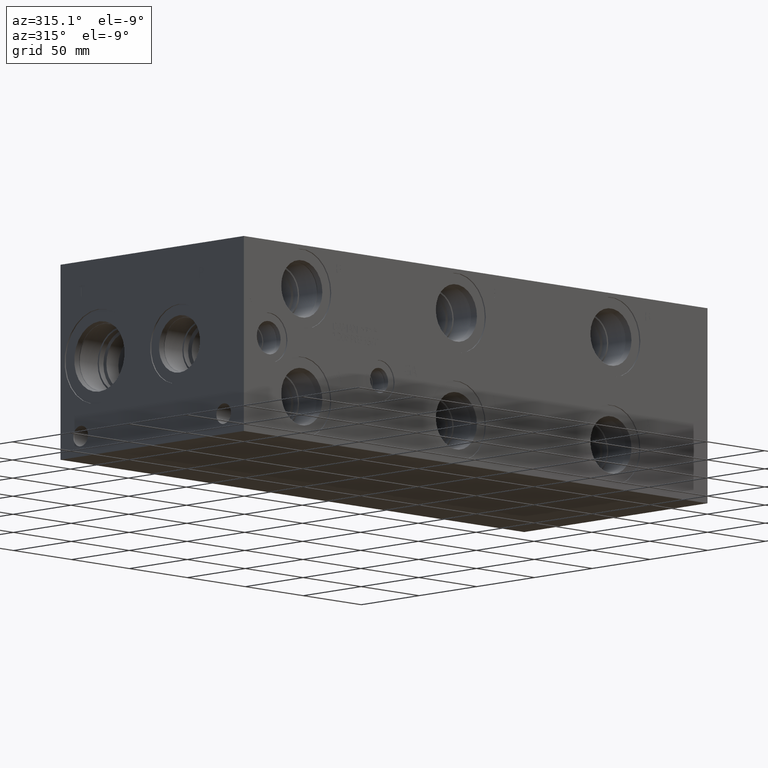
[diagram: clean part render]
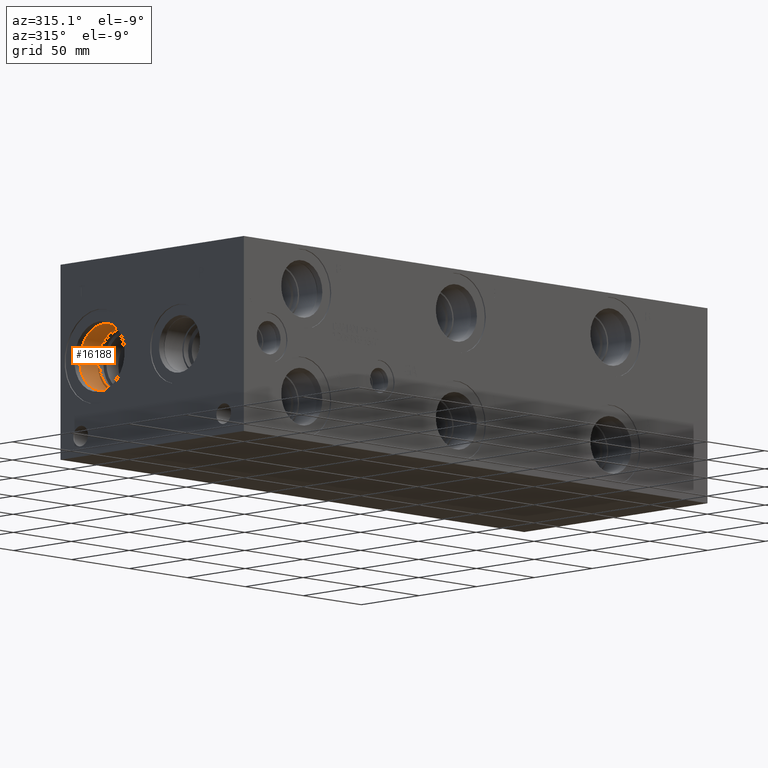
[diagram: same view with one face highlighted and labeled with its STEP entity id]
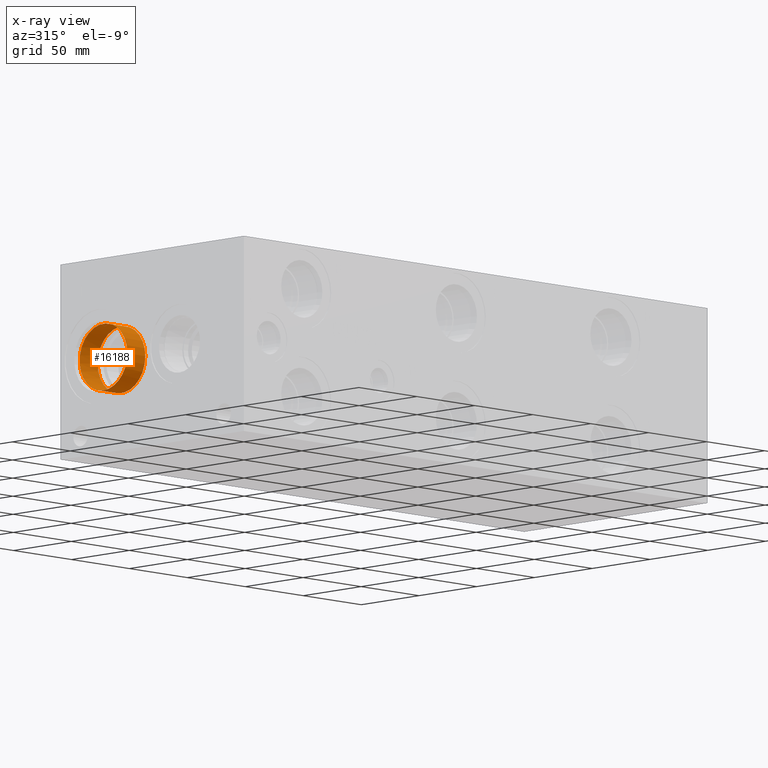
[diagram: x-ray of the same camera — body ghosted, the highlighted face saturated]
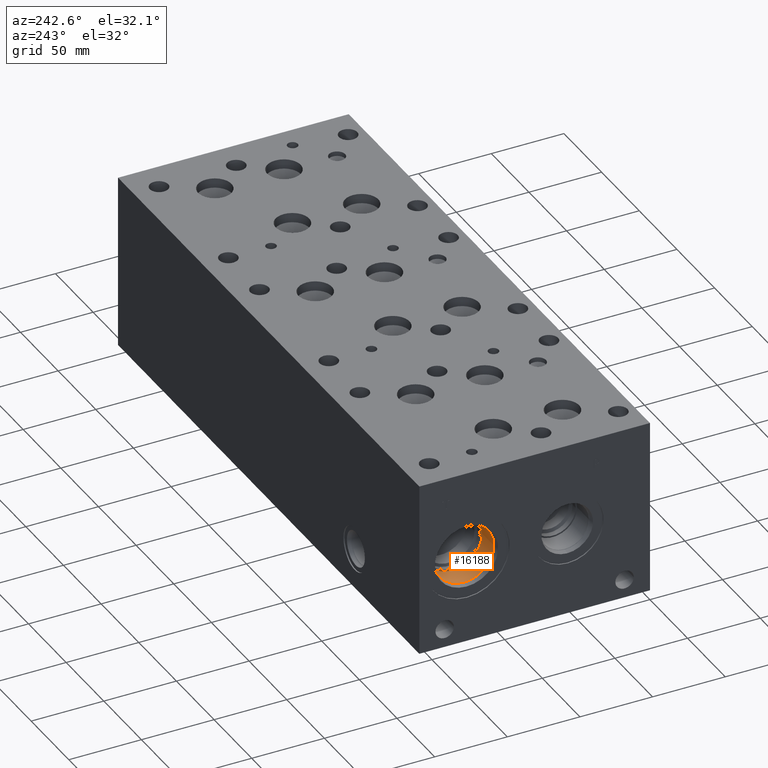
[diagram: same view with one face highlighted and labeled with its STEP entity id]
A machine part, auxiliary view. The second image highlights one B-rep face of the part: STEP entity #16188.
The next image is the same camera in x-ray: the body ghosted, the highlighted face saturated — about 0% of this face is hidden behind the body in this view.
A second angle (auxiliary view) of the same face is appended — the face is thin or edge-on in the first view.
In plain terms, the highlighted cylindrical surface (bore or boss wall) has radius 20.64 mm, axis along (-1, 0, 0).
Its self-contained STEP definition (entity closure, byte-faithful):
#144=CYLINDRICAL_SURFACE('',#16971,20.64);
#366=CIRCLE('',#16968,20.64);
#367=CIRCLE('',#16969,20.64);
#369=CIRCLE('',#16972,20.64);
#370=CIRCLE('',#16973,20.64);
#2143=FACE_OUTER_BOUND('',#3084,.T.);
#3084=EDGE_LOOP('',(#13362,#13363,#13364,#13365,#13366,#13367));
#4584=LINE('',#27407,#5962);
#5962=VECTOR('',#19832,20.64);
#7307=VERTEX_POINT('',#27397);
#7308=VERTEX_POINT('',#27398);
#7310=VERTEX_POINT('',#27404);
#7311=VERTEX_POINT('',#27405);
#9439=EDGE_CURVE('',#7307,#7308,#366,.T.);
#9440=EDGE_CURVE('',#7308,#7307,#367,.T.);
#9442=EDGE_CURVE('',#7310,#7311,#369,.T.);
#9443=EDGE_CURVE('',#7310,#7308,#4584,.T.);
#9444=EDGE_CURVE('',#7311,#7310,#370,.T.);
#13362=ORIENTED_EDGE('',*,*,#9442,.F.);
#13363=ORIENTED_EDGE('',*,*,#9443,.T.);
#13364=ORIENTED_EDGE('',*,*,#9439,.F.);
#13365=ORIENTED_EDGE('',*,*,#9440,.F.);
#13366=ORIENTED_EDGE('',*,*,#9443,.F.);
#13367=ORIENTED_EDGE('',*,*,#9444,.F.);
#16188=ADVANCED_FACE('',(#2143),#144,.F.);
#16968=AXIS2_PLACEMENT_3D('',#27399,#19822,#19823);
#16969=AXIS2_PLACEMENT_3D('',#27400,#19824,#19825);
#16971=AXIS2_PLACEMENT_3D('',#27403,#19828,#19829);
#16972=AXIS2_PLACEMENT_3D('',#27406,#19830,#19831);
#16973=AXIS2_PLACEMENT_3D('',#27408,#19833,#19834);
#19822=DIRECTION('center_axis',(-1.,0.,0.));
#19823=DIRECTION('ref_axis',(0.,1.,0.));
#19824=DIRECTION('center_axis',(-1.,0.,0.));
#19825=DIRECTION('ref_axis',(0.,1.,0.));
#19828=DIRECTION('center_axis',(-1.,0.,0.));
#19829=DIRECTION('ref_axis',(0.,1.,0.));
#19830=DIRECTION('center_axis',(1.,0.,0.));
#19831=DIRECTION('ref_axis',(0.,1.,0.));
#19832=DIRECTION('',(1.,0.,0.));
#19833=DIRECTION('center_axis',(1.,0.,0.));
#19834=DIRECTION('ref_axis',(0.,1.,0.));
#27397=CARTESIAN_POINT('',(19.8374,146.4716,60.325));
#27398=CARTESIAN_POINT('',(19.8374,105.1916,60.325));
#27399=CARTESIAN_POINT('Origin',(19.8374,125.8316,60.325));
#27400=CARTESIAN_POINT('Origin',(19.8374,125.8316,60.325));
#27403=CARTESIAN_POINT('Origin',(9.9187,125.8316,60.325));
#27404=CARTESIAN_POINT('',(4.3028,105.1916,60.325));
#27405=CARTESIAN_POINT('',(4.3028,125.8316,39.685));
#27406=CARTESIAN_POINT('Origin',(4.3028,125.8316,60.325));
#27407=CARTESIAN_POINT('',(9.9187,105.1916,60.325));
#27408=CARTESIAN_POINT('Origin',(4.3028,125.8316,60.325));